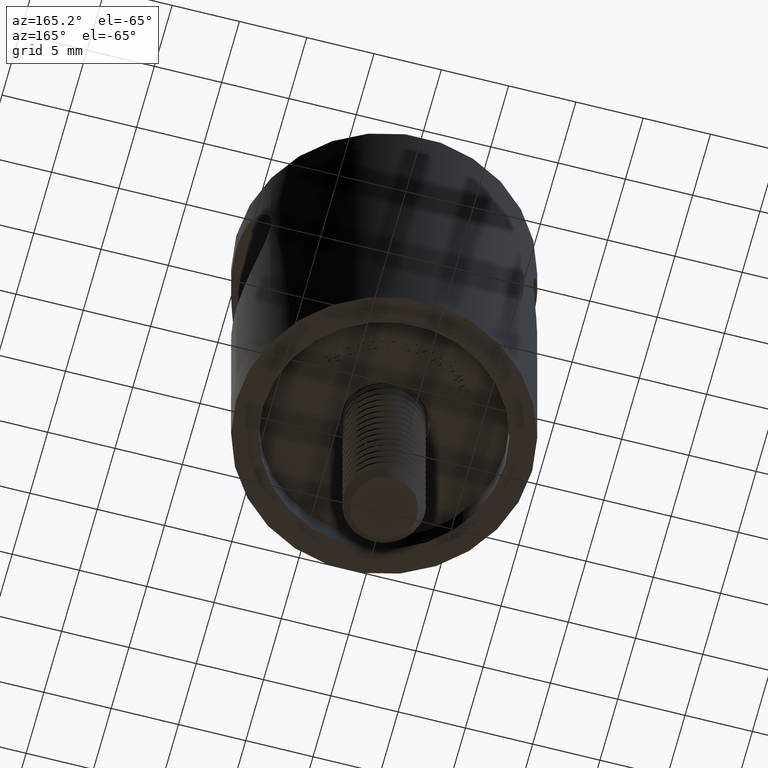
[diagram: clean part render]
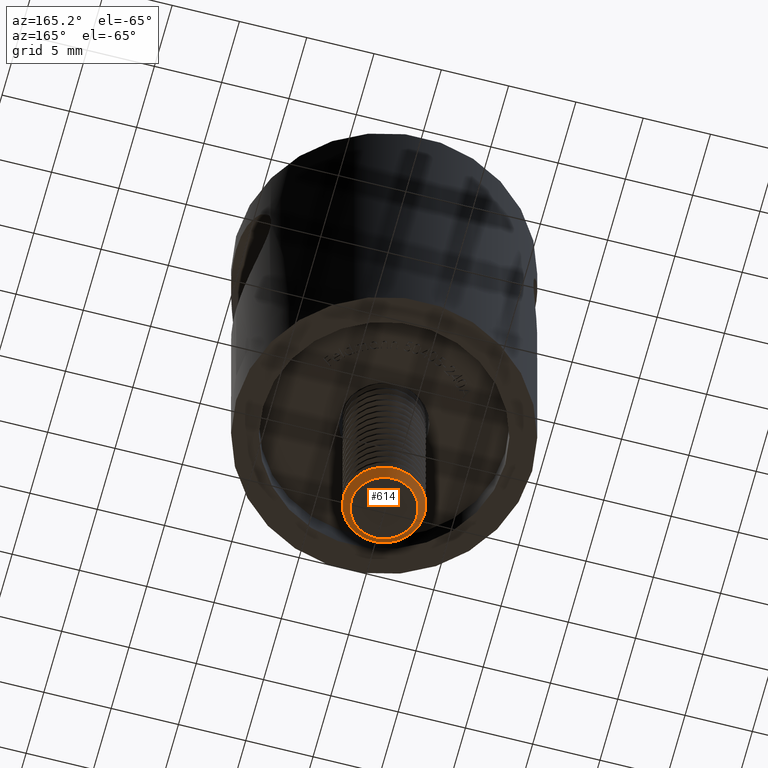
[diagram: same view with one face highlighted and labeled with its STEP entity id]
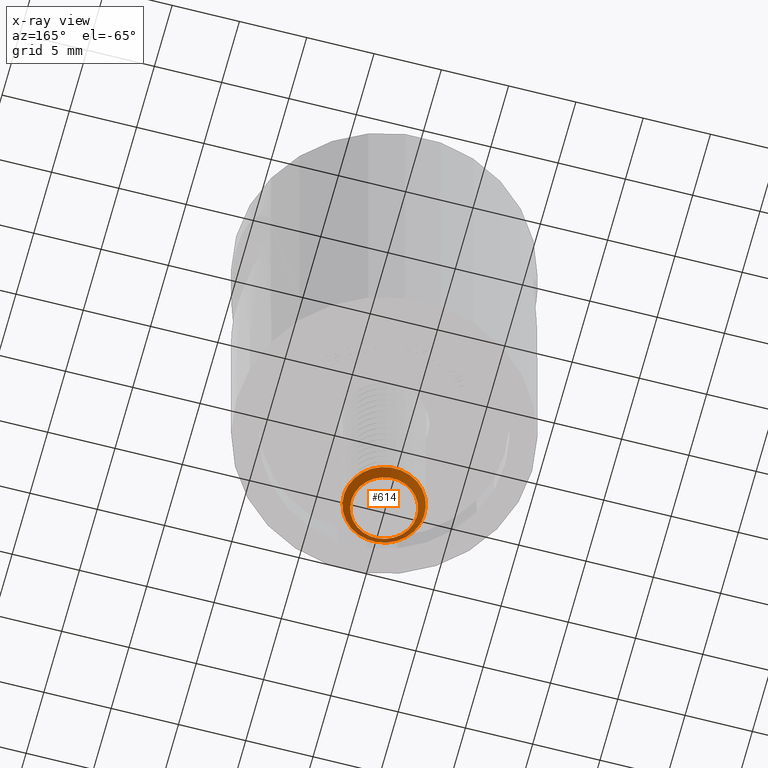
[diagram: x-ray of the same camera — body ghosted, the highlighted face saturated]
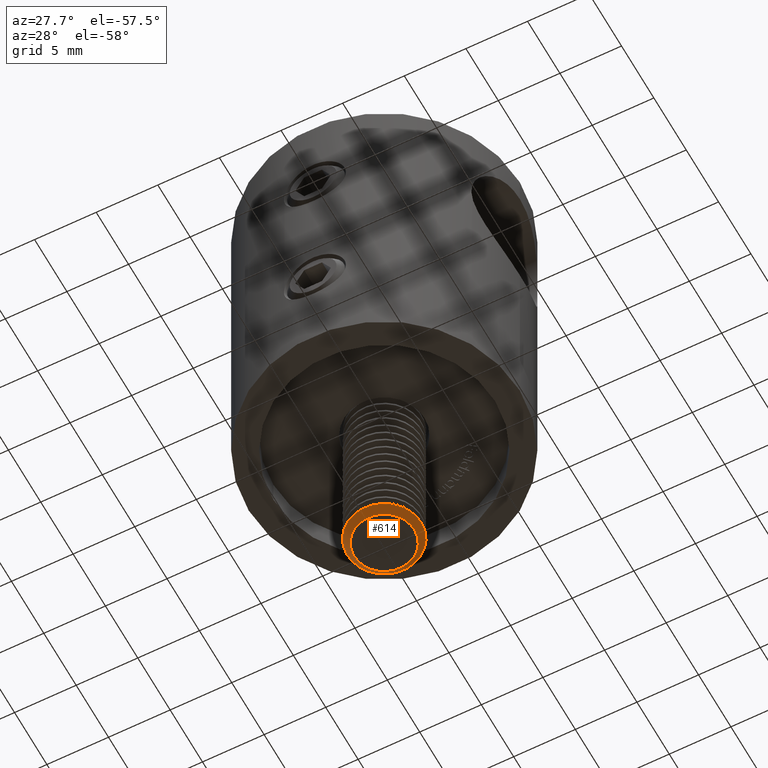
[diagram: same view with one face highlighted and labeled with its STEP entity id]
A machine part, auxiliary view. The second image highlights one B-rep face of the part: STEP entity #614.
The next image is the same camera in x-ray: the body ghosted, the highlighted face saturated — about 0% of this face is hidden behind the body in this view.
A second angle (auxiliary view) of the same face is appended — the face is thin or edge-on in the first view.
In plain terms, the highlighted conical surface has half-angle 45 deg.
Its self-contained STEP definition (entity closure, byte-faithful):
#614 = ADVANCED_FACE ( 'NONE', ( #9237, #11974 ), #10587, .T. ) ;
#823 = CARTESIAN_POINT ( 'NONE',  ( 25.00000000000000000, 0.0000000000000000000, 0.0000000000000000000 ) ) ;
#5179 = ORIENTED_EDGE ( 'NONE', *, *, #11930, .T. ) ;
#5452 = EDGE_LOOP ( 'NONE', ( #14696 ) ) ;
#5912 = EDGE_LOOP ( 'NONE', ( #5179 ) ) ;
#5959 = CARTESIAN_POINT ( 'NONE',  ( 25.00000000000000000, 0.0000000000000000000, 2.445500000000000000 ) ) ;
#6940 = DIRECTION ( 'NONE',  ( 0.0000000000000000000, 0.0000000000000000000, 1.000000000000000000 ) ) ;
#7014 = CARTESIAN_POINT ( 'NONE',  ( 25.00000000000000000, 0.0000000000000000000, 0.0000000000000000000 ) ) ;
#7950 = VERTEX_POINT ( 'NONE', #5959 ) ;
#8077 = AXIS2_PLACEMENT_3D ( 'NONE', #17723, #13784, #10473 ) ;
#9237 = FACE_OUTER_BOUND ( 'NONE', #5452, .T. ) ;
#9371 = DIRECTION ( 'NONE',  ( -1.000000000000000000, -0.0000000000000000000, -0.0000000000000000000 ) ) ;
#10295 = AXIS2_PLACEMENT_3D ( 'NONE', #823, #9371, #14652 ) ;
#10473 = DIRECTION ( 'NONE',  ( 0.0000000000000000000, 0.0000000000000000000, 1.000000000000000000 ) ) ;
#10587 = CONICAL_SURFACE ( 'NONE', #10295, 2.445500000000000000, 0.7853981633974744800 ) ;
#11930 = EDGE_CURVE ( 'NONE', #7950, #7950, #12292, .T. ) ;
#11974 = FACE_BOUND ( 'NONE', #5912, .T. ) ;
#12292 = CIRCLE ( 'NONE', #13813, 2.445500000000000000 ) ;
#13784 = DIRECTION ( 'NONE',  ( -1.000000000000000000, -0.0000000000000000000, -0.0000000000000000000 ) ) ;
#13813 = AXIS2_PLACEMENT_3D ( 'NONE', #7014, #17505, #6940 ) ;
#14652 = DIRECTION ( 'NONE',  ( 0.0000000000000000000, 0.0000000000000000000, 1.000000000000000000 ) ) ;
#14696 = ORIENTED_EDGE ( 'NONE', *, *, #18196, .F. ) ;
#16724 = CIRCLE ( 'NONE', #8077, 3.000000000000000900 ) ;
#17134 = VERTEX_POINT ( 'NONE', #18271 ) ;
#17505 = DIRECTION ( 'NONE',  ( -1.000000000000000000, -0.0000000000000000000, -0.0000000000000000000 ) ) ;
#17723 = CARTESIAN_POINT ( 'NONE',  ( 24.44550000000003100, 0.0000000000000000000, 0.0000000000000000000 ) ) ;
#18196 = EDGE_CURVE ( 'NONE', #17134, #17134, #16724, .T. ) ;
#18271 = CARTESIAN_POINT ( 'NONE',  ( 24.44550000000003100, 0.0000000000000000000, 3.000000000000000900 ) ) ;